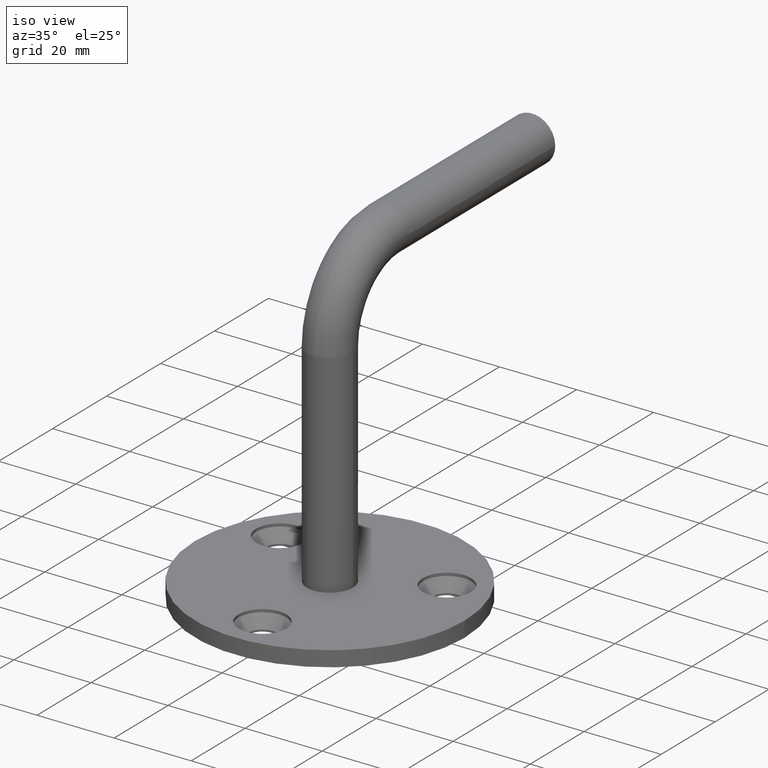
[diagram: clean part render]
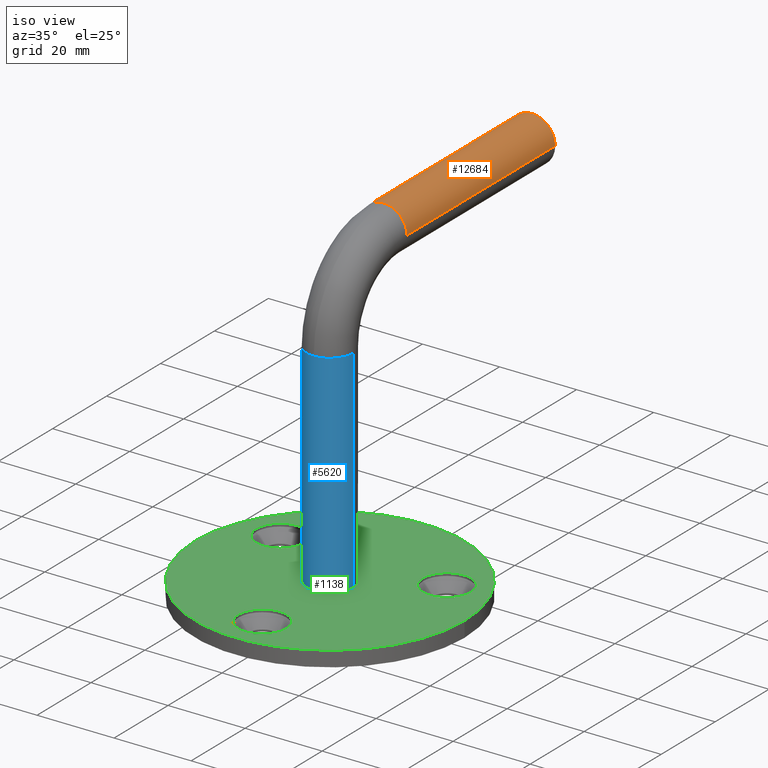
[diagram: same view with three faces highlighted in distinct colors, each labeled with its STEP entity id]
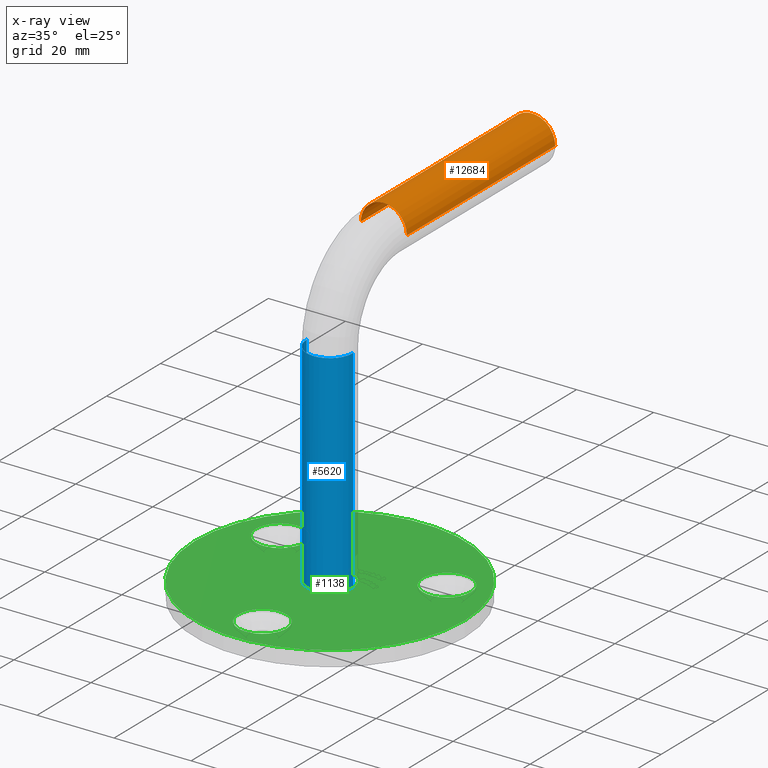
[diagram: x-ray of the same camera — body ghosted, the three highlighted faces saturated]
A machine part, iso view with three faces highlighted in distinct colors.
The next image is the same camera in x-ray (body ghosted, the three faces saturated) — at least one of them is partly hidden behind the body in this view.
Their STEP definitions:

[orange] entity #12684 — the highlighted cylindrical surface (edge-blend (fillet) strip) has radius 6 mm, axis along (0, 1, 0).
#280 = AXIS2_PLACEMENT_3D ( 'NONE', #3729, #11340, #12478 ) ;
#641 = VERTEX_POINT ( 'NONE', #7590 ) ;
#716 = VERTEX_POINT ( 'NONE', #11495 ) ;
#1807 = LINE ( 'NONE', #1935, #15523 ) ;
#1935 = CARTESIAN_POINT ( 'NONE',  ( 6.000000000000000900, 20.00000000000000400, 79.00000000000000000 ) ) ;
#1972 = AXIS2_PLACEMENT_3D ( 'NONE', #3467, #4522, #13264 ) ;
#2499 = AXIS2_PLACEMENT_3D ( 'NONE', #14321, #9463, #5534 ) ;
#3088 = CARTESIAN_POINT ( 'NONE',  ( 6.000000000000000900, 20.00000000000000400, 79.00000000000000000 ) ) ;
#3232 = ORIENTED_EDGE ( 'NONE', *, *, #10950, .F. ) ;
#3282 = DIRECTION ( 'NONE',  ( 8.795190648421900900E-017, 1.000000000000000000, 0.0000000000000000000 ) ) ;
#3467 = CARTESIAN_POINT ( 'NONE',  ( 0.0000000000000000000, 20.00000000000000400, 79.00000000000000000 ) ) ;
#3686 = EDGE_CURVE ( 'NONE', #9492, #641, #1807, .T. ) ;
#3729 = CARTESIAN_POINT ( 'NONE',  ( 0.0000000000000000000, 20.00000000000000400, 79.00000000000000000 ) ) ;
#4522 = DIRECTION ( 'NONE',  ( 0.0000000000000000000, -1.000000000000000000, 1.608122649676636600E-016 ) ) ;
#5534 = DIRECTION ( 'NONE',  ( -1.000000000000000000, 0.0000000000000000000, 0.0000000000000000000 ) ) ;
#5747 = EDGE_CURVE ( 'NONE', #6618, #6102, #9495, .T. ) ;
#6102 = VERTEX_POINT ( 'NONE', #15081 ) ;
#6618 = VERTEX_POINT ( 'NONE', #14060 ) ;
#6623 = ORIENTED_EDGE ( 'NONE', *, *, #3686, .T. ) ;
#7024 = AXIS2_PLACEMENT_3D ( 'NONE', #9171, #10602, #11658 ) ;
#7045 = CIRCLE ( 'NONE', #1972, 6.000000000000000900 ) ;
#7590 = CARTESIAN_POINT ( 'NONE',  ( 6.000000000000006200, 75.00000000000000000, 79.00000000000000000 ) ) ;
#8363 = EDGE_LOOP ( 'NONE', ( #3232, #6623, #10922, #15852, #13326 ) ) ;
#9171 = CARTESIAN_POINT ( 'NONE',  ( 0.0000000000000000000, 20.00000000000000400, 79.00000000000000000 ) ) ;
#9463 = DIRECTION ( 'NONE',  ( 0.0000000000000000000, -1.000000000000000000, 1.608122649676636600E-016 ) ) ;
#9492 = VERTEX_POINT ( 'NONE', #3088 ) ;
#9495 = CIRCLE ( 'NONE', #280, 6.000000000000000900 ) ;
#10434 = VECTOR ( 'NONE', #14304, 1000.000000000000000 ) ;
#10602 = DIRECTION ( 'NONE',  ( 8.795190648421900900E-017, 1.000000000000000000, 0.0000000000000000000 ) ) ;
#10905 = EDGE_CURVE ( 'NONE', #641, #716, #13285, .T. ) ;
#10922 = ORIENTED_EDGE ( 'NONE', *, *, #10905, .T. ) ;
#10950 = EDGE_CURVE ( 'NONE', #9492, #6618, #7045, .T. ) ;
#11340 = DIRECTION ( 'NONE',  ( 0.0000000000000000000, -1.000000000000000000, 1.608122649676636600E-016 ) ) ;
#11495 = CARTESIAN_POINT ( 'NONE',  ( -5.999999999999995600, 75.00000000000000000, 79.00000000000000000 ) ) ;
#11611 = CARTESIAN_POINT ( 'NONE',  ( -6.000000000000000900, 20.00000000000000400, 79.00000000000000000 ) ) ;
#11658 = DIRECTION ( 'NONE',  ( -1.000000000000000000, 0.0000000000000000000, 0.0000000000000000000 ) ) ;
#12478 = DIRECTION ( 'NONE',  ( -1.000000000000000000, 0.0000000000000000000, 0.0000000000000000000 ) ) ;
#12684 = ADVANCED_FACE ( 'NONE', ( #15520 ), #14142, .T. ) ;
#13264 = DIRECTION ( 'NONE',  ( -1.000000000000000000, 0.0000000000000000000, 0.0000000000000000000 ) ) ;
#13285 = CIRCLE ( 'NONE', #2499, 6.000000000000000900 ) ;
#13326 = ORIENTED_EDGE ( 'NONE', *, *, #5747, .F. ) ;
#13720 = LINE ( 'NONE', #11611, #10434 ) ;
#13820 = EDGE_CURVE ( 'NONE', #6102, #716, #13720, .T. ) ;
#14060 = CARTESIAN_POINT ( 'NONE',  ( 0.0000000000000000000, 20.00000000000000400, 84.99999999999998600 ) ) ;
#14142 = CYLINDRICAL_SURFACE ( 'NONE', #7024, 6.000000000000000900 ) ;
#14304 = DIRECTION ( 'NONE',  ( 8.795190648421900900E-017, 1.000000000000000000, 0.0000000000000000000 ) ) ;
#14321 = CARTESIAN_POINT ( 'NONE',  ( 4.837354856632045500E-015, 75.00000000000000000, 79.00000000000000000 ) ) ;
#15081 = CARTESIAN_POINT ( 'NONE',  ( -6.000000000000000900, 20.00000000000000400, 79.00000000000000000 ) ) ;
#15520 = FACE_OUTER_BOUND ( 'NONE', #8363, .T. ) ;
#15523 = VECTOR ( 'NONE', #3282, 1000.000000000000000 ) ;
#15852 = ORIENTED_EDGE ( 'NONE', *, *, #13820, .F. ) ;

[blue] entity #5620 — the highlighted cylindrical surface (edge-blend (fillet) strip) has radius 6 mm, axis along (-0, -0, -1).
#2043 = EDGE_CURVE ( 'NONE', #2188, #10807, #5334, .T. ) ;
#2114 = CARTESIAN_POINT ( 'NONE',  ( 0.0000000000000000000, 0.0000000000000000000, 59.00000000000000000 ) ) ;
#2188 = VERTEX_POINT ( 'NONE', #6352 ) ;
#3170 = DIRECTION ( 'NONE',  ( -0.0000000000000000000, -0.0000000000000000000, -1.000000000000000000 ) ) ;
#3450 = CARTESIAN_POINT ( 'NONE',  ( -6.000000000000000900, 0.0000000000000000000, 4.000000000000003600 ) ) ;
#3660 = CARTESIAN_POINT ( 'NONE',  ( 0.0000000000000000000, 0.0000000000000000000, 4.000000000000003600 ) ) ;
#4031 = AXIS2_PLACEMENT_3D ( 'NONE', #15371, #10577, #4321 ) ;
#4088 = CIRCLE ( 'NONE', #9943, 6.000000000000000900 ) ;
#4133 = ORIENTED_EDGE ( 'NONE', *, *, #9484, .T. ) ;
#4274 = EDGE_LOOP ( 'NONE', ( #11756, #7286, #4133, #12032, #4953 ) ) ;
#4321 = DIRECTION ( 'NONE',  ( -1.000000000000000000, 0.0000000000000000000, 0.0000000000000000000 ) ) ;
#4377 = AXIS2_PLACEMENT_3D ( 'NONE', #3660, #9980, #9817 ) ;
#4467 = DIRECTION ( 'NONE',  ( -1.000000000000000000, 0.0000000000000000000, 0.0000000000000000000 ) ) ;
#4953 = ORIENTED_EDGE ( 'NONE', *, *, #7097, .T. ) ;
#5334 = LINE ( 'NONE', #5922, #10231 ) ;
#5620 = ADVANCED_FACE ( 'NONE', ( #15359 ), #14970, .T. ) ;
#5785 = VECTOR ( 'NONE', #3170, 1000.000000000000000 ) ;
#5849 = EDGE_CURVE ( 'NONE', #9195, #12612, #14785, .T. ) ;
#5922 = CARTESIAN_POINT ( 'NONE',  ( 6.000000000000000900, 7.347880794884120700E-016, 59.00000000000000000 ) ) ;
#5976 = AXIS2_PLACEMENT_3D ( 'NONE', #10413, #11624, #14159 ) ;
#6352 = CARTESIAN_POINT ( 'NONE',  ( 6.000000000000000900, 7.347880794884120700E-016, 59.00000000000000000 ) ) ;
#6793 = CARTESIAN_POINT ( 'NONE',  ( 0.0000000000000000000, -6.000000000000001800, 59.00000000000000000 ) ) ;
#6917 = CARTESIAN_POINT ( 'NONE',  ( -6.000000000000000900, 0.0000000000000000000, 59.00000000000000000 ) ) ;
#7097 = EDGE_CURVE ( 'NONE', #12612, #10807, #9882, .T. ) ;
#7286 = ORIENTED_EDGE ( 'NONE', *, *, #10628, .T. ) ;
#8261 = DIRECTION ( 'NONE',  ( 0.0000000000000000000, 0.0000000000000000000, -1.000000000000000000 ) ) ;
#8510 = DIRECTION ( 'NONE',  ( -0.0000000000000000000, -0.0000000000000000000, -1.000000000000000000 ) ) ;
#9195 = VERTEX_POINT ( 'NONE', #10112 ) ;
#9355 = CARTESIAN_POINT ( 'NONE',  ( 6.000000000000000900, 7.347880794884120700E-016, 4.000000000000003600 ) ) ;
#9484 = EDGE_CURVE ( 'NONE', #16065, #9195, #14865, .T. ) ;
#9817 = DIRECTION ( 'NONE',  ( 1.000000000000000000, 0.0000000000000000000, 0.0000000000000000000 ) ) ;
#9882 = CIRCLE ( 'NONE', #4377, 6.000000000000000900 ) ;
#9943 = AXIS2_PLACEMENT_3D ( 'NONE', #2114, #8261, #4467 ) ;
#9980 = DIRECTION ( 'NONE',  ( 0.0000000000000000000, 0.0000000000000000000, 1.000000000000000000 ) ) ;
#10112 = CARTESIAN_POINT ( 'NONE',  ( -6.000000000000000900, 0.0000000000000000000, 59.00000000000000000 ) ) ;
#10231 = VECTOR ( 'NONE', #8510, 1000.000000000000000 ) ;
#10413 = CARTESIAN_POINT ( 'NONE',  ( 0.0000000000000000000, 0.0000000000000000000, 59.00000000000000000 ) ) ;
#10577 = DIRECTION ( 'NONE',  ( -0.0000000000000000000, -0.0000000000000000000, -1.000000000000000000 ) ) ;
#10628 = EDGE_CURVE ( 'NONE', #2188, #16065, #4088, .T. ) ;
#10807 = VERTEX_POINT ( 'NONE', #9355 ) ;
#11624 = DIRECTION ( 'NONE',  ( 0.0000000000000000000, 0.0000000000000000000, -1.000000000000000000 ) ) ;
#11756 = ORIENTED_EDGE ( 'NONE', *, *, #2043, .F. ) ;
#12032 = ORIENTED_EDGE ( 'NONE', *, *, #5849, .T. ) ;
#12612 = VERTEX_POINT ( 'NONE', #3450 ) ;
#14159 = DIRECTION ( 'NONE',  ( -1.000000000000000000, 0.0000000000000000000, 0.0000000000000000000 ) ) ;
#14785 = LINE ( 'NONE', #6917, #5785 ) ;
#14865 = CIRCLE ( 'NONE', #5976, 6.000000000000000900 ) ;
#14970 = CYLINDRICAL_SURFACE ( 'NONE', #4031, 6.000000000000000900 ) ;
#15359 = FACE_OUTER_BOUND ( 'NONE', #4274, .T. ) ;
#15371 = CARTESIAN_POINT ( 'NONE',  ( 0.0000000000000000000, 0.0000000000000000000, 59.00000000000000000 ) ) ;
#16065 = VERTEX_POINT ( 'NONE', #6793 ) ;

[green] entity #1138 — the highlighted planar face has unit normal (0, 0, 1).
#524 = CARTESIAN_POINT ( 'NONE',  ( -5.875354786519197400E-016, 7.704264988854427000E-016, 4.000000000000000000 ) ) ;
#561 = VERTEX_POINT ( 'NONE', #12048 ) ;
#629 = CIRCLE ( 'NONE', #6544, 6.249999999999998200 ) ;
#846 = FACE_BOUND ( 'NONE', #7387, .T. ) ;
#900 = DIRECTION ( 'NONE',  ( 1.000000000000000000, 0.0000000000000000000, 0.0000000000000000000 ) ) ;
#1138 = ADVANCED_FACE ( 'NONE', ( #16134, #11203, #846, #3168, #15132 ), #9279, .T. ) ;
#1356 = AXIS2_PLACEMENT_3D ( 'NONE', #3222, #2204, #10961 ) ;
#1434 = CARTESIAN_POINT ( 'NONE',  ( 35.00000000000000700, 5.056690295901181000E-015, 4.000000000000000000 ) ) ;
#1450 = CARTESIAN_POINT ( 'NONE',  ( 27.90063509461100100, 12.49999999999994100, 4.000000000000001800 ) ) ;
#1618 = DIRECTION ( 'NONE',  ( -0.0000000000000000000, -0.0000000000000000000, 1.000000000000000000 ) ) ;
#1999 = CARTESIAN_POINT ( 'NONE',  ( -5.875354786519197400E-016, 7.704264988854427000E-016, 4.000000000000000000 ) ) ;
#2204 = DIRECTION ( 'NONE',  ( -0.0000000000000000000, -0.0000000000000000000, 1.000000000000000000 ) ) ;
#2477 = EDGE_CURVE ( 'NONE', #11717, #9932, #629, .T. ) ;
#2644 = DIRECTION ( 'NONE',  ( 1.000000000000000000, 0.0000000000000000000, 0.0000000000000000000 ) ) ;
#2661 = DIRECTION ( 'NONE',  ( 0.0000000000000000000, 0.0000000000000000000, 1.000000000000000000 ) ) ;
#2683 = EDGE_CURVE ( 'NONE', #15348, #12360, #7293, .T. ) ;
#2877 = VERTEX_POINT ( 'NONE', #1450 ) ;
#3012 = CIRCLE ( 'NONE', #12214, 6.249999999999998200 ) ;
#3016 = DIRECTION ( 'NONE',  ( 0.0000000000000000000, 0.0000000000000000000, 1.000000000000000000 ) ) ;
#3168 = FACE_BOUND ( 'NONE', #8113, .T. ) ;
#3222 = CARTESIAN_POINT ( 'NONE',  ( -21.65063509461099400, 12.49999999999995400, 4.000000000000001800 ) ) ;
#3450 = CARTESIAN_POINT ( 'NONE',  ( -6.000000000000000900, 0.0000000000000000000, 4.000000000000003600 ) ) ;
#3660 = CARTESIAN_POINT ( 'NONE',  ( 0.0000000000000000000, 0.0000000000000000000, 4.000000000000003600 ) ) ;
#4020 = CARTESIAN_POINT ( 'NONE',  ( 21.65063509461100100, 12.49999999999994100, 4.000000000000001800 ) ) ;
#4223 = ORIENTED_EDGE ( 'NONE', *, *, #2477, .F. ) ;
#4377 = AXIS2_PLACEMENT_3D ( 'NONE', #3660, #9980, #9817 ) ;
#4402 = DIRECTION ( 'NONE',  ( 1.000000000000000000, 0.0000000000000000000, -0.0000000000000000000 ) ) ;
#4428 = EDGE_CURVE ( 'NONE', #9574, #2877, #8575, .T. ) ;
#4501 = CIRCLE ( 'NONE', #14454, 6.000000000000000900 ) ;
#4601 = DIRECTION ( 'NONE',  ( -0.0000000000000000000, -0.0000000000000000000, 1.000000000000000000 ) ) ;
#4781 = ORIENTED_EDGE ( 'NONE', *, *, #15621, .F. ) ;
#4869 = CARTESIAN_POINT ( 'NONE',  ( -27.90063509461099400, 12.49999999999995400, 4.000000000000001800 ) ) ;
#5273 = CARTESIAN_POINT ( 'NONE',  ( -15.40063509461099600, 12.49999999999995400, 4.000000000000001800 ) ) ;
#5538 = EDGE_CURVE ( 'NONE', #13594, #561, #11640, .T. ) ;
#5681 = DIRECTION ( 'NONE',  ( 0.0000000000000000000, 0.0000000000000000000, 1.000000000000000000 ) ) ;
#5685 = ORIENTED_EDGE ( 'NONE', *, *, #2683, .F. ) ;
#5917 = CARTESIAN_POINT ( 'NONE',  ( 15.40063509461100300, 12.49999999999994100, 4.000000000000001800 ) ) ;
#5938 = CARTESIAN_POINT ( 'NONE',  ( 2.474081519216739500E-015, -25.00000000000000400, 4.000000000000001800 ) ) ;
#6500 = DIRECTION ( 'NONE',  ( 1.000000000000000000, 0.0000000000000000000, 0.0000000000000000000 ) ) ;
#6544 = AXIS2_PLACEMENT_3D ( 'NONE', #16144, #7361, #16037 ) ;
#6572 = DIRECTION ( 'NONE',  ( 1.000000000000000000, 0.0000000000000000000, 0.0000000000000000000 ) ) ;
#6592 = ORIENTED_EDGE ( 'NONE', *, *, #11541, .F. ) ;
#6900 = CIRCLE ( 'NONE', #13933, 6.249999999999998200 ) ;
#6942 = EDGE_CURVE ( 'NONE', #12360, #15348, #3012, .T. ) ;
#7030 = DIRECTION ( 'NONE',  ( 0.0000000000000000000, 0.0000000000000000000, 1.000000000000000000 ) ) ;
#7097 = EDGE_CURVE ( 'NONE', #12612, #10807, #9882, .T. ) ;
#7164 = AXIS2_PLACEMENT_3D ( 'NONE', #5938, #4601, #900 ) ;
#7293 = CIRCLE ( 'NONE', #7164, 6.249999999999998200 ) ;
#7325 = AXIS2_PLACEMENT_3D ( 'NONE', #1999, #5681, #8202 ) ;
#7361 = DIRECTION ( 'NONE',  ( -0.0000000000000000000, -0.0000000000000000000, 1.000000000000000000 ) ) ;
#7387 = EDGE_LOOP ( 'NONE', ( #10335, #5685 ) ) ;
#7391 = AXIS2_PLACEMENT_3D ( 'NONE', #12805, #2661, #6572 ) ;
#7411 = EDGE_LOOP ( 'NONE', ( #4223, #6592 ) ) ;
#7817 = CARTESIAN_POINT ( 'NONE',  ( 6.250000000000000900, -25.00000000000000400, 4.000000000000001800 ) ) ;
#8113 = EDGE_LOOP ( 'NONE', ( #13864, #4781 ) ) ;
#8202 = DIRECTION ( 'NONE',  ( 1.000000000000000000, 0.0000000000000000000, 0.0000000000000000000 ) ) ;
#8355 = DIRECTION ( 'NONE',  ( 1.000000000000000000, 0.0000000000000000000, 0.0000000000000000000 ) ) ;
#8575 = CIRCLE ( 'NONE', #11991, 6.249999999999998200 ) ;
#8711 = DIRECTION ( 'NONE',  ( -0.0000000000000000000, -0.0000000000000000000, 1.000000000000000000 ) ) ;
#9062 = CARTESIAN_POINT ( 'NONE',  ( 2.474081519216739500E-015, -25.00000000000000400, 4.000000000000001800 ) ) ;
#9279 = PLANE ( 'NONE',  #9993 ) ;
#9355 = CARTESIAN_POINT ( 'NONE',  ( 6.000000000000000900, 7.347880794884120700E-016, 4.000000000000003600 ) ) ;
#9379 = ORIENTED_EDGE ( 'NONE', *, *, #10437, .T. ) ;
#9574 = VERTEX_POINT ( 'NONE', #5917 ) ;
#9817 = DIRECTION ( 'NONE',  ( 1.000000000000000000, 0.0000000000000000000, 0.0000000000000000000 ) ) ;
#9882 = CIRCLE ( 'NONE', #4377, 6.000000000000000900 ) ;
#9932 = VERTEX_POINT ( 'NONE', #4869 ) ;
#9961 = CARTESIAN_POINT ( 'NONE',  ( -6.249999999999996400, -25.00000000000000400, 4.000000000000001800 ) ) ;
#9980 = DIRECTION ( 'NONE',  ( 0.0000000000000000000, 0.0000000000000000000, 1.000000000000000000 ) ) ;
#9993 = AXIS2_PLACEMENT_3D ( 'NONE', #524, #3016, #4402 ) ;
#10217 = DIRECTION ( 'NONE',  ( -0.0000000000000000000, -0.0000000000000000000, 1.000000000000000000 ) ) ;
#10335 = ORIENTED_EDGE ( 'NONE', *, *, #6942, .F. ) ;
#10437 = EDGE_CURVE ( 'NONE', #561, #13594, #12494, .T. ) ;
#10789 = EDGE_LOOP ( 'NONE', ( #15486, #15203 ) ) ;
#10807 = VERTEX_POINT ( 'NONE', #9355 ) ;
#10961 = DIRECTION ( 'NONE',  ( 1.000000000000000000, 0.0000000000000000000, 0.0000000000000000000 ) ) ;
#11203 = FACE_BOUND ( 'NONE', #10789, .T. ) ;
#11400 = CARTESIAN_POINT ( 'NONE',  ( 21.65063509461100100, 12.49999999999994100, 4.000000000000001800 ) ) ;
#11541 = EDGE_CURVE ( 'NONE', #9932, #11717, #14946, .T. ) ;
#11640 = CIRCLE ( 'NONE', #7391, 35.00000000000000700 ) ;
#11717 = VERTEX_POINT ( 'NONE', #5273 ) ;
#11975 = CARTESIAN_POINT ( 'NONE',  ( 0.0000000000000000000, 0.0000000000000000000, 4.000000000000003600 ) ) ;
#11991 = AXIS2_PLACEMENT_3D ( 'NONE', #11400, #8711, #13745 ) ;
#12048 = CARTESIAN_POINT ( 'NONE',  ( -35.00000000000000700, 7.704264988854427000E-016, 4.000000000000000000 ) ) ;
#12214 = AXIS2_PLACEMENT_3D ( 'NONE', #9062, #10217, #6500 ) ;
#12360 = VERTEX_POINT ( 'NONE', #7817 ) ;
#12494 = CIRCLE ( 'NONE', #7325, 35.00000000000000700 ) ;
#12612 = VERTEX_POINT ( 'NONE', #3450 ) ;
#12805 = CARTESIAN_POINT ( 'NONE',  ( -5.875354786519197400E-016, 7.704264988854427000E-016, 4.000000000000000000 ) ) ;
#13460 = EDGE_CURVE ( 'NONE', #2877, #9574, #6900, .T. ) ;
#13594 = VERTEX_POINT ( 'NONE', #1434 ) ;
#13745 = DIRECTION ( 'NONE',  ( 1.000000000000000000, 0.0000000000000000000, 0.0000000000000000000 ) ) ;
#13864 = ORIENTED_EDGE ( 'NONE', *, *, #7097, .F. ) ;
#13918 = EDGE_LOOP ( 'NONE', ( #9379, #14991 ) ) ;
#13933 = AXIS2_PLACEMENT_3D ( 'NONE', #4020, #1618, #2644 ) ;
#14454 = AXIS2_PLACEMENT_3D ( 'NONE', #11975, #7030, #8355 ) ;
#14946 = CIRCLE ( 'NONE', #1356, 6.249999999999998200 ) ;
#14991 = ORIENTED_EDGE ( 'NONE', *, *, #5538, .T. ) ;
#15132 = FACE_OUTER_BOUND ( 'NONE', #13918, .T. ) ;
#15203 = ORIENTED_EDGE ( 'NONE', *, *, #4428, .F. ) ;
#15348 = VERTEX_POINT ( 'NONE', #9961 ) ;
#15486 = ORIENTED_EDGE ( 'NONE', *, *, #13460, .F. ) ;
#15621 = EDGE_CURVE ( 'NONE', #10807, #12612, #4501, .T. ) ;
#16037 = DIRECTION ( 'NONE',  ( 1.000000000000000000, 0.0000000000000000000, 0.0000000000000000000 ) ) ;
#16134 = FACE_BOUND ( 'NONE', #7411, .T. ) ;
#16144 = CARTESIAN_POINT ( 'NONE',  ( -21.65063509461099400, 12.49999999999995400, 4.000000000000001800 ) ) ;